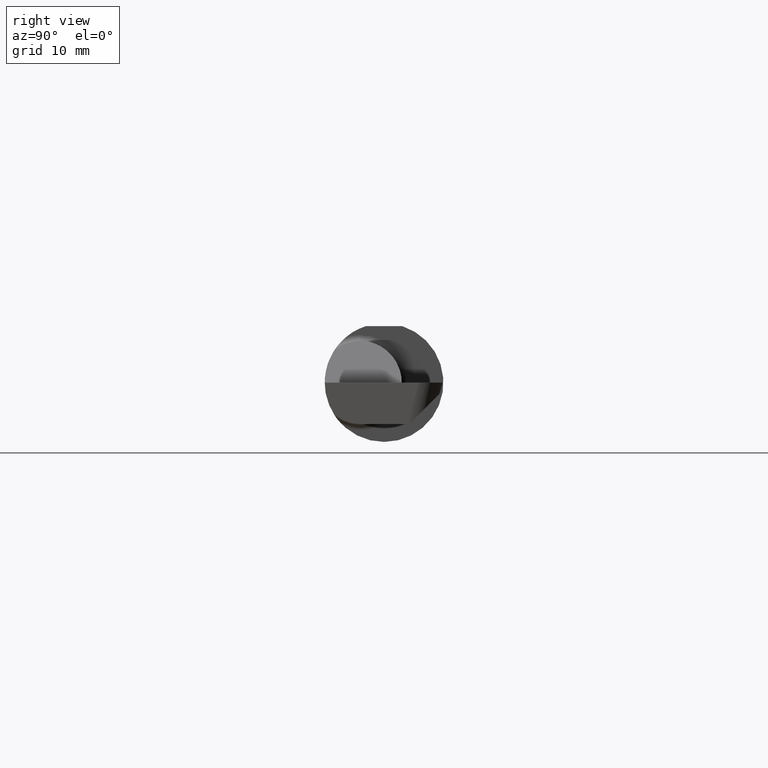
[diagram: clean part render]
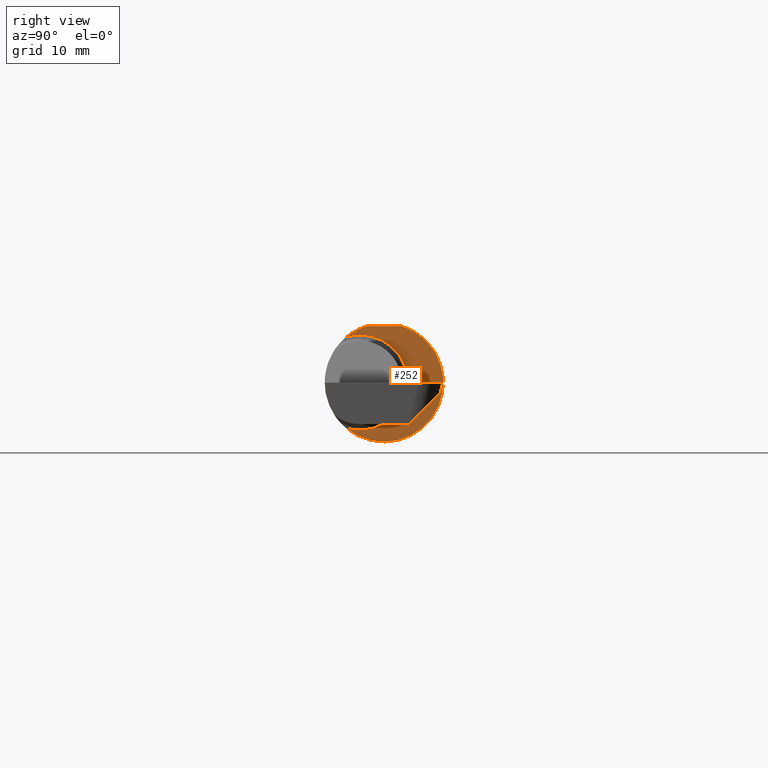
[diagram: same view with one face highlighted and labeled with its STEP entity id]
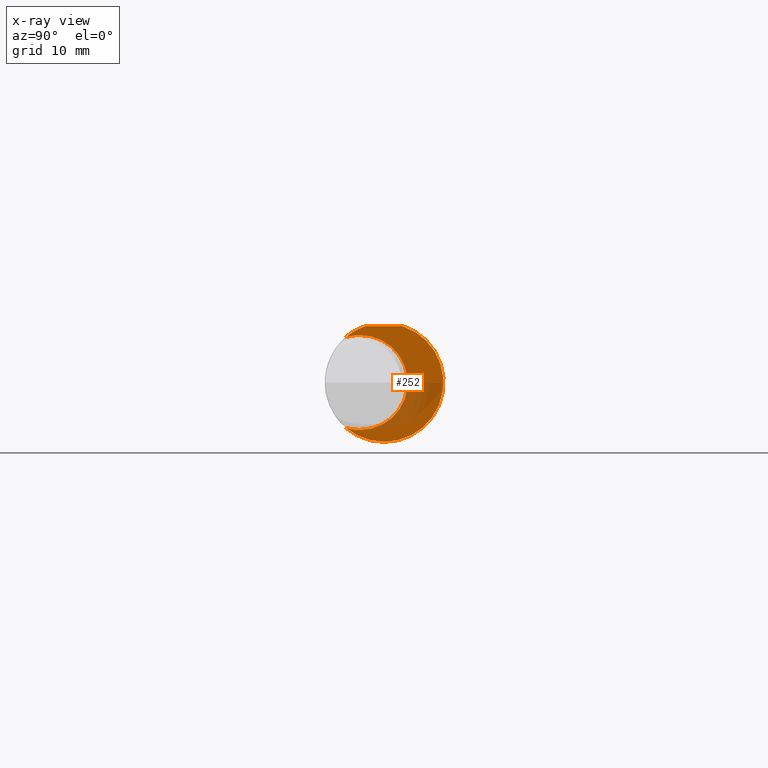
[diagram: x-ray of the same camera — body ghosted, the highlighted face saturated]
A machine part, right view. The second image highlights one B-rep face of the part: STEP entity #252.
The next image is the same camera in x-ray: the body ghosted, the highlighted face saturated — about 25% of this face is hidden behind the body in this view.
In plain terms, the highlighted planar face has unit normal (1, 0, 0).
Its self-contained STEP definition (entity closure, byte-faithful):
#16 = DIRECTION ( 'NONE',  ( 1.000000000000000000, 0.000000000000000000, 0.000000000000000000 ) ) ;
#43 = FACE_OUTER_BOUND ( 'NONE', #804, .T. ) ;
#62 = CARTESIAN_POINT ( 'NONE',  ( 2.200000000000000178, -0.1008500000000000091, 0.000000000000000000 ) ) ;
#66 = CARTESIAN_POINT ( 'NONE',  ( 2.200000000000000178, 0.07650098038587520299, 0.2378499999999998671 ) ) ;
#97 = CARTESIAN_POINT ( 'NONE',  ( 2.200000000000000178, -0.1008500000000000091, -0.1999999999999999833 ) ) ;
#119 = DIRECTION ( 'NONE',  ( 0.000000000000000000, 0.000000000000000000, 1.000000000000000000 ) ) ;
#138 = VECTOR ( 'NONE', #700, 39.37007874015748143 ) ;
#145 = ORIENTED_EDGE ( 'NONE', *, *, #229, .T. ) ;
#153 = CARTESIAN_POINT ( 'NONE',  ( 2.200000000000000178, 0.000000000000000000, 0.000000000000000000 ) ) ;
#165 = PLANE ( 'NONE',  #207 ) ;
#179 = CARTESIAN_POINT ( 'NONE',  ( 2.200000000000000178, -0.1008500000000000368, 0.1999999999999999833 ) ) ;
#202 = VERTEX_POINT ( 'NONE', #97 ) ;
#205 = CARTESIAN_POINT ( 'NONE',  ( 2.200000000000000178, -0.1616050818046604054, -0.1905487340154980447 ) ) ;
#207 = AXIS2_PLACEMENT_3D ( 'NONE', #607, #299, #423 ) ;
#215 = CARTESIAN_POINT ( 'NONE',  ( 2.200000000000000178, -0.07650098038587527238, 0.2378499999999998671 ) ) ;
#224 = DIRECTION ( 'NONE',  ( 0.000000000000000000, 0.000000000000000000, -1.000000000000000000 ) ) ;
#229 = EDGE_CURVE ( 'NONE', #766, #596, #459, .T. ) ;
#235 = CIRCLE ( 'NONE', #295, 0.1999999999999999833 ) ;
#241 = DIRECTION ( 'NONE',  ( -1.000000000000000000, -0.000000000000000000, -0.000000000000000000 ) ) ;
#244 = EDGE_CURVE ( 'NONE', #642, #627, #292, .T. ) ;
#252 = ADVANCED_FACE ( 'NONE', ( #43 ), #165, .T. ) ;
#292 = CIRCLE ( 'NONE', #561, 0.2498499999999999888 ) ;
#295 = AXIS2_PLACEMENT_3D ( 'NONE', #682, #241, #665 ) ;
#299 = DIRECTION ( 'NONE',  ( 1.000000000000000000, 0.000000000000000000, 0.000000000000000000 ) ) ;
#310 = ORIENTED_EDGE ( 'NONE', *, *, #244, .T. ) ;
#321 = ORIENTED_EDGE ( 'NONE', *, *, #549, .T. ) ;
#322 = DIRECTION ( 'NONE',  ( 0.000000000000000000, 0.000000000000000000, 1.000000000000000000 ) ) ;
#325 = LINE ( 'NONE', #453, #138 ) ;
#333 = CARTESIAN_POINT ( 'NONE',  ( 2.200000000000000178, -0.1616050818046604054, 0.1905487340154980447 ) ) ;
#356 = ORIENTED_EDGE ( 'NONE', *, *, #485, .T. ) ;
#373 = CARTESIAN_POINT ( 'NONE',  ( 2.200000000000000178, -0.1008500000000000091, 0.000000000000000000 ) ) ;
#384 = AXIS2_PLACEMENT_3D ( 'NONE', #62, #769, #322 ) ;
#409 = AXIS2_PLACEMENT_3D ( 'NONE', #153, #411, #224 ) ;
#411 = DIRECTION ( 'NONE',  ( 1.000000000000000000, 0.000000000000000000, 0.000000000000000000 ) ) ;
#418 = VERTEX_POINT ( 'NONE', #179 ) ;
#423 = DIRECTION ( 'NONE',  ( 0.000000000000000000, 0.000000000000000000, -1.000000000000000000 ) ) ;
#436 = AXIS2_PLACEMENT_3D ( 'NONE', #373, #729, #119 ) ;
#453 = CARTESIAN_POINT ( 'NONE',  ( 2.200000000000000178, 0.2498499999999998500, 0.2378499999999998671 ) ) ;
#459 = CIRCLE ( 'NONE', #409, 0.2498499999999999888 ) ;
#465 = EDGE_CURVE ( 'NONE', #596, #418, #501, .T. ) ;
#485 = EDGE_CURVE ( 'NONE', #418, #202, #235, .T. ) ;
#501 = CIRCLE ( 'NONE', #436, 0.1999999999999999833 ) ;
#524 = CARTESIAN_POINT ( 'NONE',  ( 2.200000000000000178, 0.000000000000000000, 0.000000000000000000 ) ) ;
#533 = EDGE_CURVE ( 'NONE', #766, #627, #325, .T. ) ;
#549 = EDGE_CURVE ( 'NONE', #202, #642, #582, .T. ) ;
#561 = AXIS2_PLACEMENT_3D ( 'NONE', #524, #16, #736 ) ;
#582 = CIRCLE ( 'NONE', #384, 0.1999999999999999833 ) ;
#596 = VERTEX_POINT ( 'NONE', #333 ) ;
#607 = CARTESIAN_POINT ( 'NONE',  ( 2.200000000000000178, 0.2498499999999999333, 0.000000000000000000 ) ) ;
#627 = VERTEX_POINT ( 'NONE', #66 ) ;
#642 = VERTEX_POINT ( 'NONE', #205 ) ;
#665 = DIRECTION ( 'NONE',  ( 0.000000000000000000, 0.000000000000000000, 1.000000000000000000 ) ) ;
#682 = CARTESIAN_POINT ( 'NONE',  ( 2.200000000000000178, -0.1008500000000000091, 0.000000000000000000 ) ) ;
#692 = ORIENTED_EDGE ( 'NONE', *, *, #465, .T. ) ;
#700 = DIRECTION ( 'NONE',  ( 0.000000000000000000, 1.000000000000000000, 0.000000000000000000 ) ) ;
#729 = DIRECTION ( 'NONE',  ( -1.000000000000000000, -0.000000000000000000, -0.000000000000000000 ) ) ;
#736 = DIRECTION ( 'NONE',  ( 0.000000000000000000, 0.000000000000000000, -1.000000000000000000 ) ) ;
#742 = ORIENTED_EDGE ( 'NONE', *, *, #533, .F. ) ;
#766 = VERTEX_POINT ( 'NONE', #215 ) ;
#769 = DIRECTION ( 'NONE',  ( -1.000000000000000000, -0.000000000000000000, -0.000000000000000000 ) ) ;
#804 = EDGE_LOOP ( 'NONE', ( #310, #742, #145, #692, #356, #321 ) ) ;